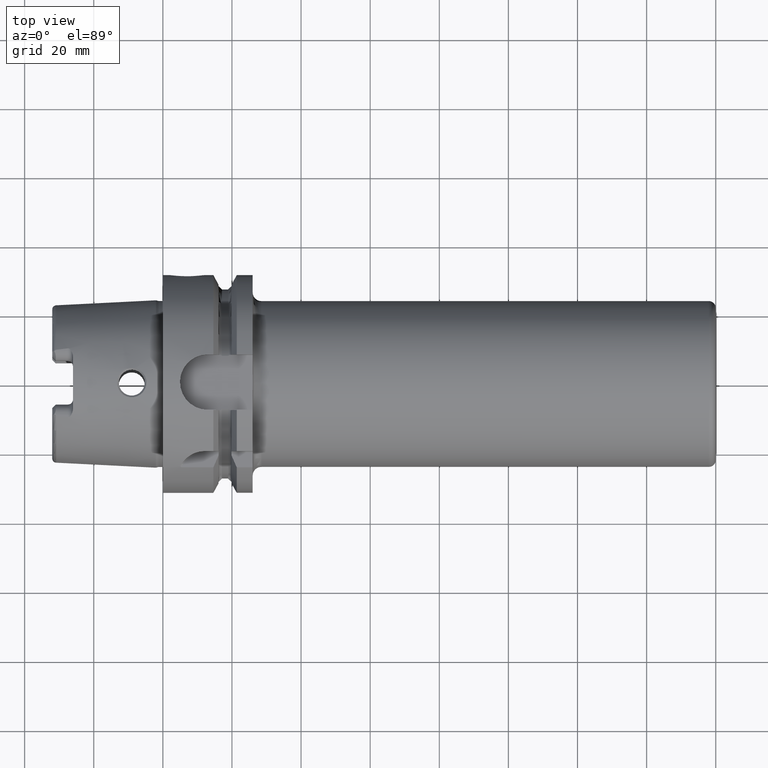
[diagram: clean part render]
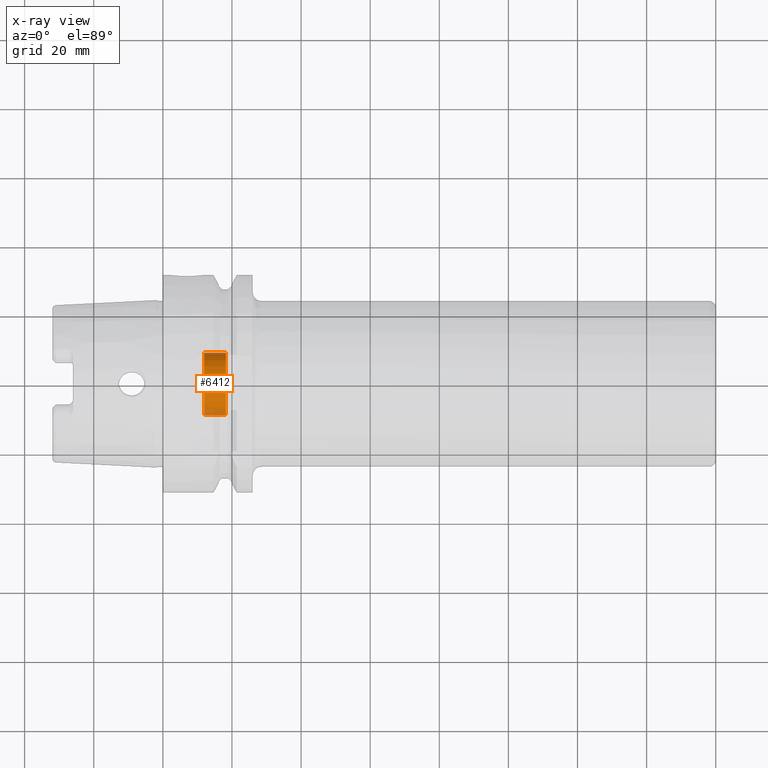
[diagram: x-ray — body ghosted, one internal face saturated and labeled with its STEP entity id]
A machine part, top view, then the same camera in x-ray: the body is ghosted and one INTERNAL B-rep face — a face not visible from any outside direction — is saturated and labeled: STEP entity #6412.
In plain terms, the highlighted cylindrical surface (edge-blend (fillet) strip) has radius 9 mm, axis along (1, 0, 0).
Its self-contained STEP definition (entity closure, byte-faithful):
#6361=CARTESIAN_POINT('',(1.19625E1,0.E0,0.E0));
#6362=DIRECTION('',(-1.E0,0.E0,0.E0));
#6363=DIRECTION('',(0.E0,-1.E0,0.E0));
#6364=AXIS2_PLACEMENT_3D('',#6361,#6362,#6363);
#6366=DIRECTION('',(1.E0,0.E0,0.E0));
#6367=VECTOR('',#6366,6.261593106483E0);
#6368=CARTESIAN_POINT('',(1.19625E1,9.E0,0.E0));
#6369=LINE('',#6368,#6367);
#6370=CARTESIAN_POINT('',(1.822409310648E1,0.E0,0.E0));
#6371=DIRECTION('',(1.E0,0.E0,0.E0));
#6372=DIRECTION('',(0.E0,1.E0,0.E0));
#6373=AXIS2_PLACEMENT_3D('',#6370,#6371,#6372);
#6380=DIRECTION('',(1.E0,0.E0,0.E0));
#6381=VECTOR('',#6380,6.261593106483E0);
#6382=CARTESIAN_POINT('',(1.19625E1,-9.E0,0.E0));
#6383=LINE('',#6382,#6381);
#6389=CARTESIAN_POINT('',(1.822409310648E1,9.E0,0.E0));
#6390=CARTESIAN_POINT('',(1.822409310648E1,-9.E0,0.E0));
#6391=VERTEX_POINT('',#6389);
#6392=VERTEX_POINT('',#6390);
#6393=CARTESIAN_POINT('',(1.19625E1,9.E0,0.E0));
#6394=CARTESIAN_POINT('',(1.19625E1,-9.E0,0.E0));
#6395=VERTEX_POINT('',#6393);
#6396=VERTEX_POINT('',#6394);
#6397=CARTESIAN_POINT('',(-3.885261521357E1,0.E0,0.E0));
#6398=DIRECTION('',(1.E0,0.E0,0.E0));
#6399=DIRECTION('',(0.E0,1.E0,0.E0));
#6400=AXIS2_PLACEMENT_3D('',#6397,#6398,#6399);
#6401=CYLINDRICAL_SURFACE('',#6400,9.E0);
#6403=ORIENTED_EDGE('',*,*,#6402,.T.);
#6405=ORIENTED_EDGE('',*,*,#6404,.T.);
#6407=ORIENTED_EDGE('',*,*,#6406,.T.);
#6409=ORIENTED_EDGE('',*,*,#6408,.F.);
#6410=EDGE_LOOP('',(#6403,#6405,#6407,#6409));
#6411=FACE_OUTER_BOUND('',#6410,.F.);
#6412=ADVANCED_FACE('',(#6411),#6401,.T.);
#6365=CIRCLE('',#6364,9.E0);
#6374=CIRCLE('',#6373,9.E0);
#6402=EDGE_CURVE('',#6396,#6395,#6365,.T.);
#6404=EDGE_CURVE('',#6395,#6391,#6369,.T.);
#6406=EDGE_CURVE('',#6391,#6392,#6374,.T.);
#6408=EDGE_CURVE('',#6396,#6392,#6383,.T.);